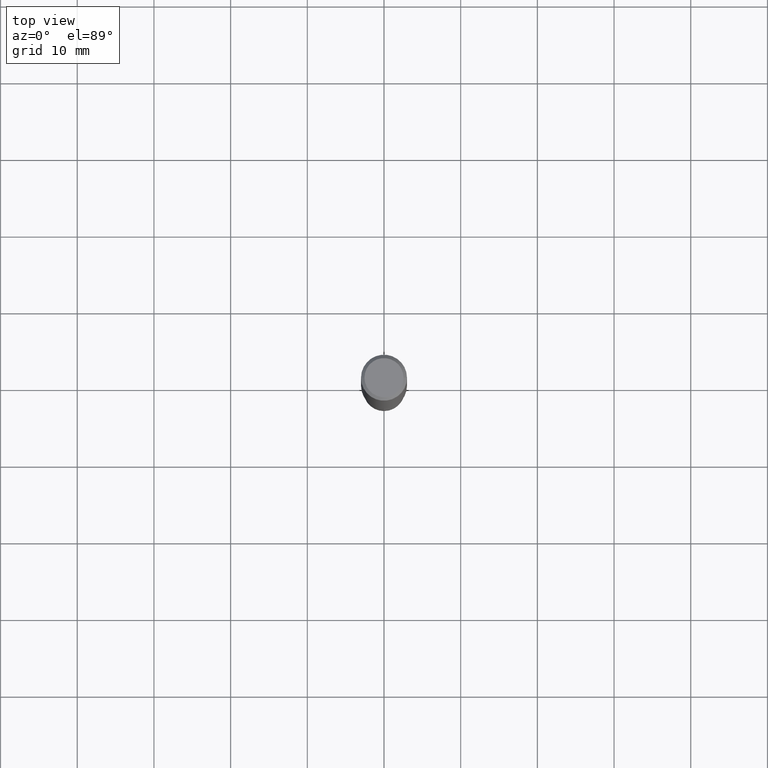
[diagram: clean part render]
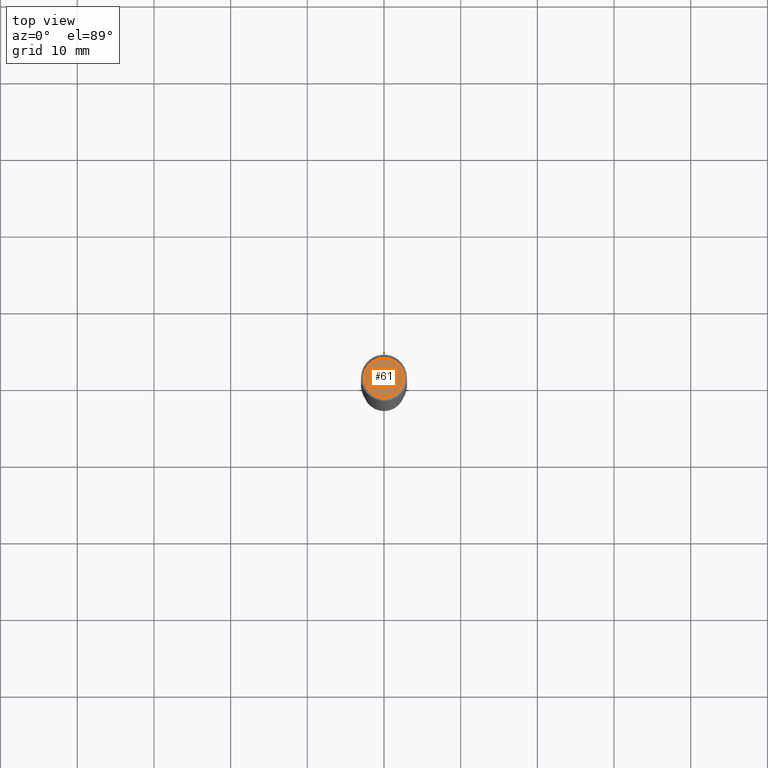
[diagram: same view with one face highlighted and labeled with its STEP entity id]
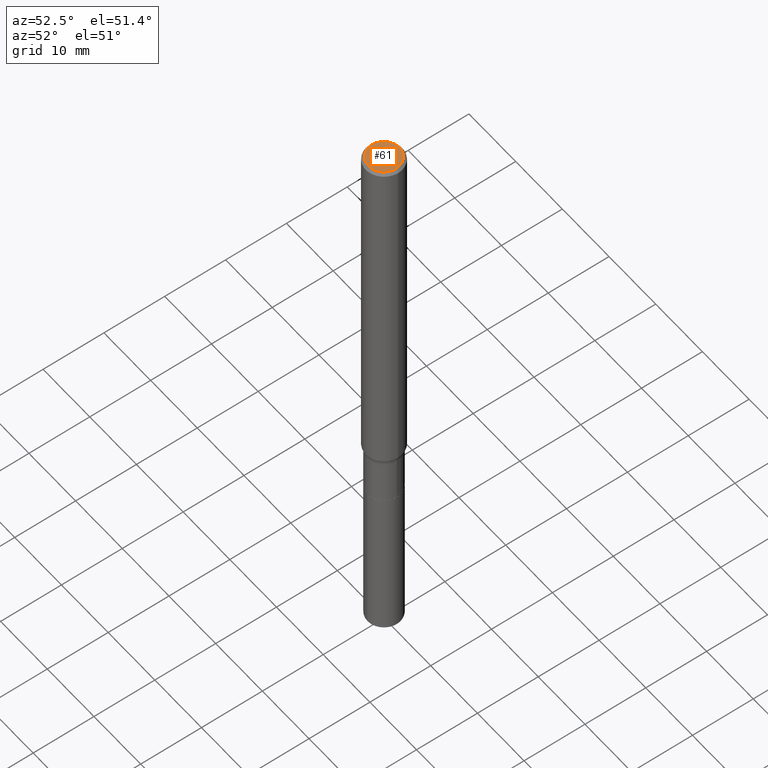
[diagram: same view with one face highlighted and labeled with its STEP entity id]
A machine part, top view. The second image highlights one B-rep face of the part: STEP entity #61.
A second angle (auxiliary view) of the same face is appended — the face is thin or edge-on in the first view.
In plain terms, the highlighted planar face has unit normal (0, -0, -1).
Its self-contained STEP definition (entity closure, byte-faithful):
#15 = FACE_OUTER_BOUND ( 'NONE', #320, .T. ) ;
#33 = CIRCLE ( 'NONE', #379, 0.1003850000000000159 ) ;
#45 = PLANE ( 'NONE',  #434 ) ;
#53 = DIRECTION ( 'NONE',  ( 1.000000000000000000, -6.982962677686266711E-15, 4.875668750515085695E-29 ) ) ;
#61 = ADVANCED_FACE ( 'NONE', ( #15 ), #45, .F. ) ;
#91 = CARTESIAN_POINT ( 'NONE',  ( 0.1003850000000000159, -7.803837484803599345E-16, -2.868857591682071522E-17 ) ) ;
#93 = EDGE_CURVE ( 'NONE', #353, #153, #33, .T. ) ;
#98 = EDGE_CURVE ( 'NONE', #153, #353, #138, .T. ) ;
#129 = DIRECTION ( 'NONE',  ( -2.445468806185136597E-29, 3.491481338843145583E-15, 1.000000000000000000 ) ) ;
#138 = CIRCLE ( 'NONE', #365, 0.1003850000000000159 ) ;
#153 = VERTEX_POINT ( 'NONE', #91 ) ;
#194 = DIRECTION ( 'NONE',  ( 2.438088387897960049E-29, -3.491481338843145188E-15, -1.000000000000000000 ) ) ;
#201 = CARTESIAN_POINT ( 'NONE',  ( 7.015701749847187307E-46, -1.001656274515824970E-31, -2.868857591682589212E-17 ) ) ;
#207 = ORIENTED_EDGE ( 'NONE', *, *, #98, .T. ) ;
#222 = CARTESIAN_POINT ( 'NONE',  ( 3.507850874923593654E-46, -5.008281372579124849E-32, -1.434428795841294606E-17 ) ) ;
#271 = DIRECTION ( 'NONE',  ( -2.445468806185136597E-29, 3.491481338843145583E-15, 1.000000000000000000 ) ) ;
#320 = EDGE_LOOP ( 'NONE', ( #465, #207 ) ) ;
#332 = CARTESIAN_POINT ( 'NONE',  ( -0.1003850000000000159, 7.319105043583384717E-16, -2.868857591683090262E-17 ) ) ;
#345 = CARTESIAN_POINT ( 'NONE',  ( 7.015701749847187307E-46, -1.001656274515824970E-31, -2.868857591682589212E-17 ) ) ;
#353 = VERTEX_POINT ( 'NONE', #332 ) ;
#365 = AXIS2_PLACEMENT_3D ( 'NONE', #345, #271, #385 ) ;
#379 = AXIS2_PLACEMENT_3D ( 'NONE', #201, #129, #53 ) ;
#385 = DIRECTION ( 'NONE',  ( 1.000000000000000000, -6.982962677686266711E-15, 4.875668750515085695E-29 ) ) ;
#434 = AXIS2_PLACEMENT_3D ( 'NONE', #222, #194, #450 ) ;
#450 = DIRECTION ( 'NONE',  ( -1.000000000000000000, 6.982962677686265922E-15, -4.876176775795935793E-29 ) ) ;
#465 = ORIENTED_EDGE ( 'NONE', *, *, #93, .T. ) ;